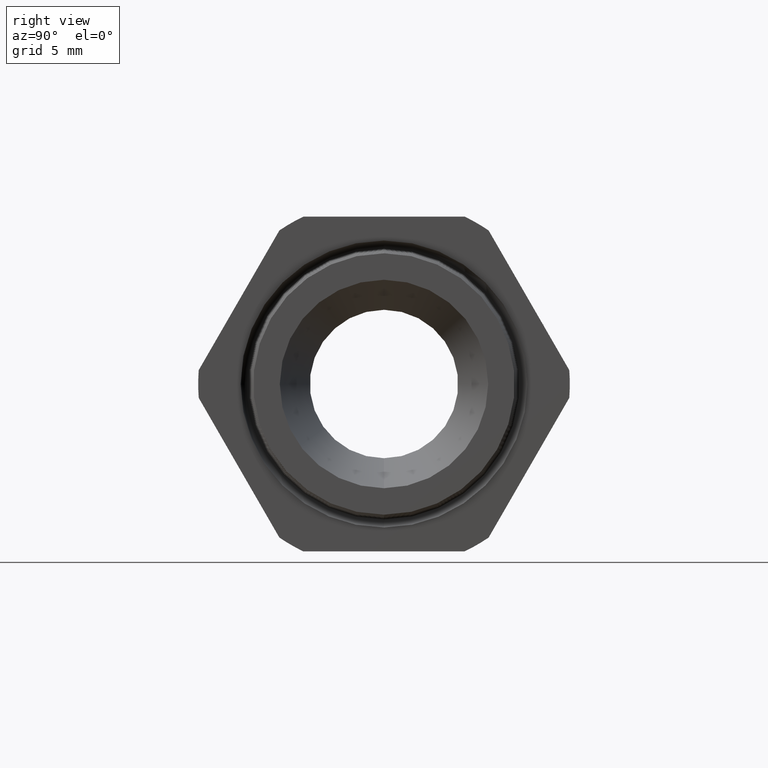
[diagram: clean part render]
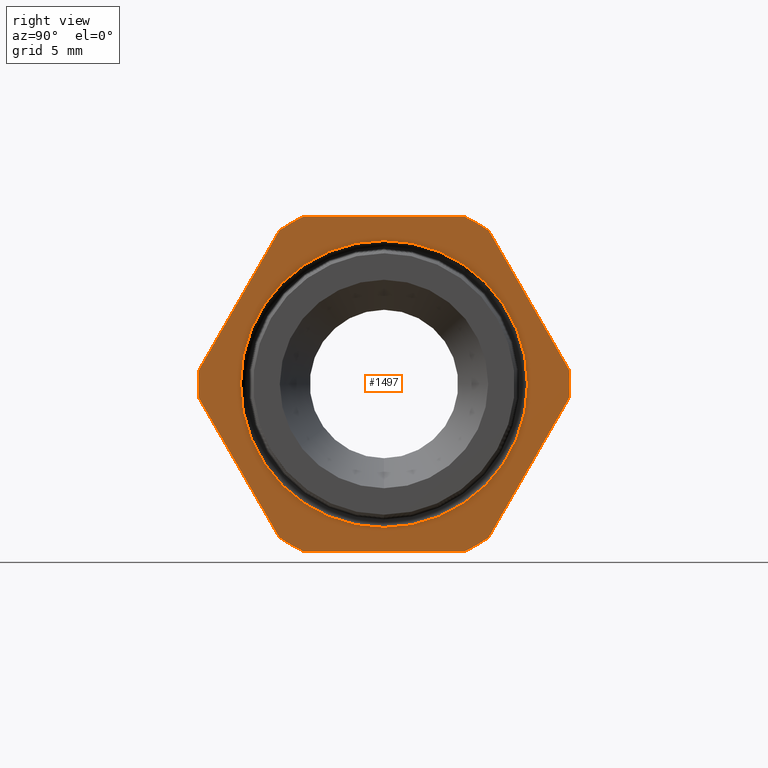
[diagram: same view with one face highlighted and labeled with its STEP entity id]
A machine part, right view. The second image highlights one B-rep face of the part: STEP entity #1497.
In plain terms, the highlighted planar face has unit normal (1, 0, 0).
Its self-contained STEP definition (entity closure, byte-faithful):
#1482 = EDGE_CURVE ( 'NONE', #1490, #1483, #3194, .T. ) ;
#1483 = VERTEX_POINT ( 'NONE', #3190 ) ;
#1484 = ORIENTED_EDGE ( 'NONE', *, *, #1482, .T. ) ;
#1485 = EDGE_CURVE ( 'NONE', #1487, #1490, #3189, .T. ) ;
#1486 = ORIENTED_EDGE ( 'NONE', *, *, #1485, .T. ) ;
#1487 = VERTEX_POINT ( 'NONE', #3184 ) ;
#1488 = VERTEX_POINT ( 'NONE', #3183 ) ;
#1489 = EDGE_CURVE ( 'NONE', #1488, #1487, #3182, .T. ) ;
#1490 = VERTEX_POINT ( 'NONE', #3178 ) ;
#1491 = ORIENTED_EDGE ( 'NONE', *, *, #1489, .T. ) ;
#1495 = EDGE_LOOP ( 'NONE', ( #1491, #1486, #1484, #1512, #1509, #1505, #1503, #1499, #1522, #1519, #1514, #1518 ) ) ;
#1496 = VERTEX_POINT ( 'NONE', #3173 ) ;
#1497 = ADVANCED_FACE ( 'NONE', ( #3172, #3171 ), #3170, .T. ) ;
#1498 = EDGE_CURVE ( 'NONE', #1500, #1496, #3229, .T. ) ;
#1499 = ORIENTED_EDGE ( 'NONE', *, *, #1498, .T. ) ;
#1500 = VERTEX_POINT ( 'NONE', #3224 ) ;
#1501 = VERTEX_POINT ( 'NONE', #3223 ) ;
#1502 = EDGE_CURVE ( 'NONE', #1506, #1501, #3222, .T. ) ;
#1503 = ORIENTED_EDGE ( 'NONE', *, *, #1504, .T. ) ;
#1504 = EDGE_CURVE ( 'NONE', #1501, #1500, #3217, .T. ) ;
#1505 = ORIENTED_EDGE ( 'NONE', *, *, #1502, .T. ) ;
#1506 = VERTEX_POINT ( 'NONE', #3213 ) ;
#1507 = VERTEX_POINT ( 'NONE', #3212 ) ;
#1508 = EDGE_CURVE ( 'NONE', #1507, #1506, #3211, .T. ) ;
#1509 = ORIENTED_EDGE ( 'NONE', *, *, #1508, .T. ) ;
#1510 = EDGE_CURVE ( 'NONE', #1483, #1507, #3207, .T. ) ;
#1511 = ORIENTED_EDGE ( 'NONE', *, *, #1603, .T. ) ;
#1512 = ORIENTED_EDGE ( 'NONE', *, *, #1510, .T. ) ;
#1513 = EDGE_LOOP ( 'NONE', ( #1511, #1539 ) ) ;
#1514 = ORIENTED_EDGE ( 'NONE', *, *, #1516, .T. ) ;
#1515 = VERTEX_POINT ( 'NONE', #3202 ) ;
#1516 = EDGE_CURVE ( 'NONE', #1521, #1515, #3201, .T. ) ;
#1517 = EDGE_CURVE ( 'NONE', #1528, #1521, #3260, .T. ) ;
#1518 = ORIENTED_EDGE ( 'NONE', *, *, #1520, .T. ) ;
#1519 = ORIENTED_EDGE ( 'NONE', *, *, #1517, .T. ) ;
#1520 = EDGE_CURVE ( 'NONE', #1515, #1488, #3255, .T. ) ;
#1521 = VERTEX_POINT ( 'NONE', #3250 ) ;
#1522 = ORIENTED_EDGE ( 'NONE', *, *, #1530, .T. ) ;
#1528 = VERTEX_POINT ( 'NONE', #3243 ) ;
#1530 = EDGE_CURVE ( 'NONE', #1496, #1528, #3236, .T. ) ;
#1537 = EDGE_CURVE ( 'NONE', #1594, #1598, #3287, .T. ) ;
#1539 = ORIENTED_EDGE ( 'NONE', *, *, #1537, .T. ) ;
#1594 = VERTEX_POINT ( 'NONE', #3413 ) ;
#1598 = VERTEX_POINT ( 'NONE', #3401 ) ;
#1603 = EDGE_CURVE ( 'NONE', #1598, #1594, #3389, .T. ) ;
#3166 = DIRECTION ( 'NONE',  ( 0.0000000000000000000, 0.0000000000000000000, -1.000000000000000000 ) ) ;
#3167 = DIRECTION ( 'NONE',  ( 1.000000000000000000, 0.0000000000000000000, 0.0000000000000000000 ) ) ;
#3168 = CARTESIAN_POINT ( 'NONE',  ( -0.3100000000000000000, 1.060000000000000100, 0.0000000000000000000 ) ) ;
#3169 = AXIS2_PLACEMENT_3D ( 'NONE', #3168, #3167, #3166 ) ;
#3170 = PLANE ( 'NONE',  #3169 ) ;
#3171 = FACE_BOUND ( 'NONE', #1513, .T. ) ;
#3172 = FACE_OUTER_BOUND ( 'NONE', #1495, .T. ) ;
#3173 = CARTESIAN_POINT ( 'NONE',  ( -0.3100000000000000000, -0.5866618723924791300, -0.04387183015273716400 ) ) ;
#3178 = CARTESIAN_POINT ( 'NONE',  ( -0.3100000000000000000, 0.5866618723924791300, 0.04387183015273709400 ) ) ;
#3179 = DIRECTION ( 'NONE',  ( 0.0000000000000000000, 0.5000000000000000000, 0.8660254037844386000 ) ) ;
#3180 = VECTOR ( 'NONE', #3179, 39.37007874015748100 ) ;
#3181 = CARTESIAN_POINT ( 'NONE',  ( -0.3100000000000000000, 0.7239934640057527100, 0.1939934640057524000 ) ) ;
#3182 = LINE ( 'NONE', #3181, #3180 ) ;
#3183 = CARTESIAN_POINT ( 'NONE',  ( -0.3100000000000000000, 0.3313250556190260900, -0.4861281698472628700 ) ) ;
#3184 = CARTESIAN_POINT ( 'NONE',  ( -0.3100000000000000000, 0.5866618723924792400, -0.04387183015273712900 ) ) ;
#3185 = DIRECTION ( 'NONE',  ( 0.0000000000000000000, 0.0000000000000000000, -1.000000000000000000 ) ) ;
#3186 = DIRECTION ( 'NONE',  ( 1.000000000000000000, 0.0000000000000000000, 0.0000000000000000000 ) ) ;
#3187 = CARTESIAN_POINT ( 'NONE',  ( -0.3100000000000000000, 0.0000000000000000000, 0.0000000000000000000 ) ) ;
#3188 = AXIS2_PLACEMENT_3D ( 'NONE', #3187, #3186, #3185 ) ;
#3189 = CIRCLE ( 'NONE', #3188, 0.5883000000000000500 ) ;
#3190 = CARTESIAN_POINT ( 'NONE',  ( -0.3100000000000000000, 0.3313250556190259800, 0.4861281698472629800 ) ) ;
#3191 = DIRECTION ( 'NONE',  ( 0.0000000000000000000, -0.5000000000000002200, 0.8660254037844386000 ) ) ;
#3192 = VECTOR ( 'NONE', #3191, 39.37007874015747400 ) ;
#3193 = CARTESIAN_POINT ( 'NONE',  ( -0.3100000000000000000, 0.7239934640057524900, -0.1939934640057525400 ) ) ;
#3194 = LINE ( 'NONE', #3193, #3192 ) ;
#3198 = DIRECTION ( 'NONE',  ( 0.0000000000000000000, 1.000000000000000000, 0.0000000000000000000 ) ) ;
#3199 = VECTOR ( 'NONE', #3198, 39.37007874015748100 ) ;
#3200 = CARTESIAN_POINT ( 'NONE',  ( -0.3100000000000000000, 1.060000000000000100, -0.5300000000000001400 ) ) ;
#3201 = LINE ( 'NONE', #3200, #3199 ) ;
#3202 = CARTESIAN_POINT ( 'NONE',  ( -0.3100000000000000000, 0.2553368167734529900, -0.5300000000000001400 ) ) ;
#3203 = DIRECTION ( 'NONE',  ( 0.0000000000000000000, 0.0000000000000000000, -1.000000000000000000 ) ) ;
#3204 = DIRECTION ( 'NONE',  ( 1.000000000000000000, 0.0000000000000000000, 0.0000000000000000000 ) ) ;
#3205 = CARTESIAN_POINT ( 'NONE',  ( -0.3100000000000000000, 0.0000000000000000000, 0.0000000000000000000 ) ) ;
#3206 = AXIS2_PLACEMENT_3D ( 'NONE', #3205, #3204, #3203 ) ;
#3207 = CIRCLE ( 'NONE', #3206, 0.5882999999999999300 ) ;
#3208 = DIRECTION ( 'NONE',  ( 0.0000000000000000000, -1.000000000000000000, 0.0000000000000000000 ) ) ;
#3209 = VECTOR ( 'NONE', #3208, 39.37007874015748100 ) ;
#3210 = CARTESIAN_POINT ( 'NONE',  ( -0.3100000000000000000, 1.060000000000000100, 0.5300000000000001400 ) ) ;
#3211 = LINE ( 'NONE', #3210, #3209 ) ;
#3212 = CARTESIAN_POINT ( 'NONE',  ( -0.3100000000000000000, 0.2553368167734530500, 0.5300000000000001400 ) ) ;
#3213 = CARTESIAN_POINT ( 'NONE',  ( -0.3100000000000000000, -0.2553368167734533200, 0.5299999999999999200 ) ) ;
#3214 = DIRECTION ( 'NONE',  ( 0.0000000000000000000, -0.4999999999999997200, -0.8660254037844388200 ) ) ;
#3215 = VECTOR ( 'NONE', #3214, 39.37007874015748100 ) ;
#3216 = CARTESIAN_POINT ( 'NONE',  ( -0.3100000000000000000, -0.1939934640057531200, 0.7239934640057522600 ) ) ;
#3217 = LINE ( 'NONE', #3216, #3215 ) ;
#3218 = DIRECTION ( 'NONE',  ( 0.0000000000000000000, 0.0000000000000000000, -1.000000000000000000 ) ) ;
#3219 = DIRECTION ( 'NONE',  ( 1.000000000000000000, 0.0000000000000000000, 0.0000000000000000000 ) ) ;
#3220 = CARTESIAN_POINT ( 'NONE',  ( -0.3100000000000000000, 0.0000000000000000000, 0.0000000000000000000 ) ) ;
#3221 = AXIS2_PLACEMENT_3D ( 'NONE', #3220, #3219, #3218 ) ;
#3222 = CIRCLE ( 'NONE', #3221, 0.5882999999999999300 ) ;
#3223 = CARTESIAN_POINT ( 'NONE',  ( -0.3100000000000000000, -0.3313250556190263700, 0.4861281698472627600 ) ) ;
#3224 = CARTESIAN_POINT ( 'NONE',  ( -0.3100000000000000000, -0.5866618723924791300, 0.04387183015273703200 ) ) ;
#3225 = DIRECTION ( 'NONE',  ( 0.0000000000000000000, 0.0000000000000000000, -1.000000000000000000 ) ) ;
#3226 = DIRECTION ( 'NONE',  ( 1.000000000000000000, 0.0000000000000000000, 0.0000000000000000000 ) ) ;
#3227 = CARTESIAN_POINT ( 'NONE',  ( -0.3100000000000000000, 0.0000000000000000000, 0.0000000000000000000 ) ) ;
#3228 = AXIS2_PLACEMENT_3D ( 'NONE', #3227, #3226, #3225 ) ;
#3229 = CIRCLE ( 'NONE', #3228, 0.5883000000000000500 ) ;
#3233 = DIRECTION ( 'NONE',  ( 0.0000000000000000000, 0.5000000000000002200, -0.8660254037844386000 ) ) ;
#3234 = VECTOR ( 'NONE', #3233, 39.37007874015747400 ) ;
#3235 = CARTESIAN_POINT ( 'NONE',  ( -0.3100000000000000000, -0.1939934640057522900, -0.7239934640057527100 ) ) ;
#3236 = LINE ( 'NONE', #3235, #3234 ) ;
#3243 = CARTESIAN_POINT ( 'NONE',  ( -0.3100000000000000000, -0.3313250556190258700, -0.4861281698472630400 ) ) ;
#3250 = CARTESIAN_POINT ( 'NONE',  ( -0.3100000000000000000, -0.2553368167734529900, -0.5300000000000001400 ) ) ;
#3251 = DIRECTION ( 'NONE',  ( 0.0000000000000000000, 0.0000000000000000000, -1.000000000000000000 ) ) ;
#3252 = DIRECTION ( 'NONE',  ( 1.000000000000000000, 0.0000000000000000000, 0.0000000000000000000 ) ) ;
#3253 = CARTESIAN_POINT ( 'NONE',  ( -0.3100000000000000000, 0.0000000000000000000, 0.0000000000000000000 ) ) ;
#3254 = AXIS2_PLACEMENT_3D ( 'NONE', #3253, #3252, #3251 ) ;
#3255 = CIRCLE ( 'NONE', #3254, 0.5882999999999999300 ) ;
#3256 = DIRECTION ( 'NONE',  ( 0.0000000000000000000, 0.0000000000000000000, -1.000000000000000000 ) ) ;
#3257 = DIRECTION ( 'NONE',  ( 1.000000000000000000, 0.0000000000000000000, 0.0000000000000000000 ) ) ;
#3258 = CARTESIAN_POINT ( 'NONE',  ( -0.3100000000000000000, 0.0000000000000000000, 0.0000000000000000000 ) ) ;
#3259 = AXIS2_PLACEMENT_3D ( 'NONE', #3258, #3257, #3256 ) ;
#3260 = CIRCLE ( 'NONE', #3259, 0.5883000000000000500 ) ;
#3283 = DIRECTION ( 'NONE',  ( 0.0000000000000000000, 0.0000000000000000000, -1.000000000000000000 ) ) ;
#3284 = DIRECTION ( 'NONE',  ( -1.000000000000000000, 0.0000000000000000000, 0.0000000000000000000 ) ) ;
#3285 = CARTESIAN_POINT ( 'NONE',  ( -0.3100000000000000000, 0.0000000000000000000, 0.0000000000000000000 ) ) ;
#3286 = AXIS2_PLACEMENT_3D ( 'NONE', #3285, #3284, #3283 ) ;
#3287 = CIRCLE ( 'NONE', #3286, 0.4542202963711205500 ) ;
#3385 = DIRECTION ( 'NONE',  ( 0.0000000000000000000, 0.0000000000000000000, -1.000000000000000000 ) ) ;
#3386 = DIRECTION ( 'NONE',  ( -1.000000000000000000, 0.0000000000000000000, 0.0000000000000000000 ) ) ;
#3387 = CARTESIAN_POINT ( 'NONE',  ( -0.3100000000000000000, 0.0000000000000000000, 0.0000000000000000000 ) ) ;
#3388 = AXIS2_PLACEMENT_3D ( 'NONE', #3387, #3386, #3385 ) ;
#3389 = CIRCLE ( 'NONE', #3388, 0.4542202963711205500 ) ;
#3401 = CARTESIAN_POINT ( 'NONE',  ( -0.3100000000000000000, 0.0000000000000000000, -0.4542202963711204900 ) ) ;
#3413 = CARTESIAN_POINT ( 'NONE',  ( -0.3100000000000000000, 5.562594320586549700E-017, 0.4542202963711204900 ) ) ;